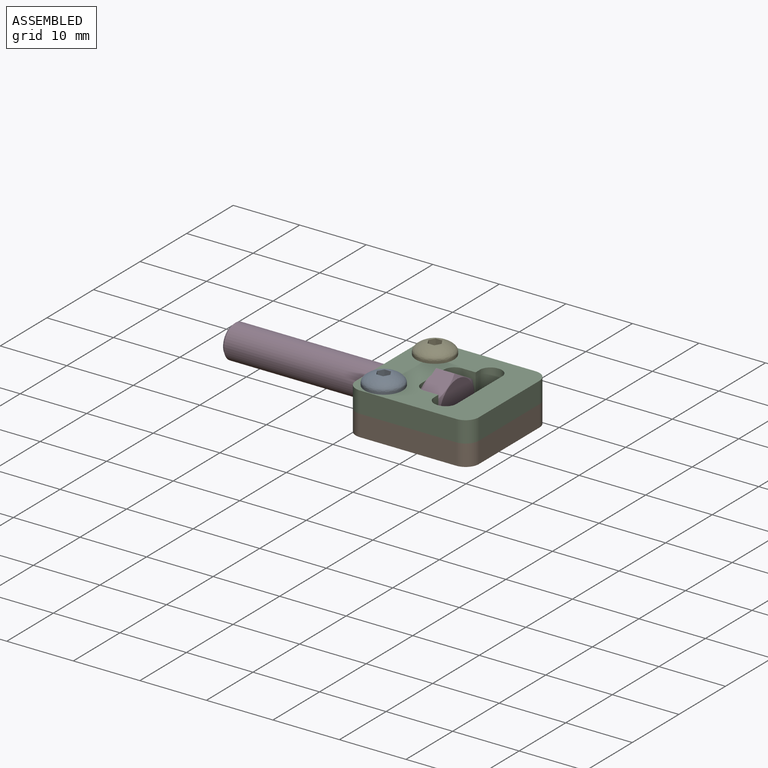
[diagram: assembled view]
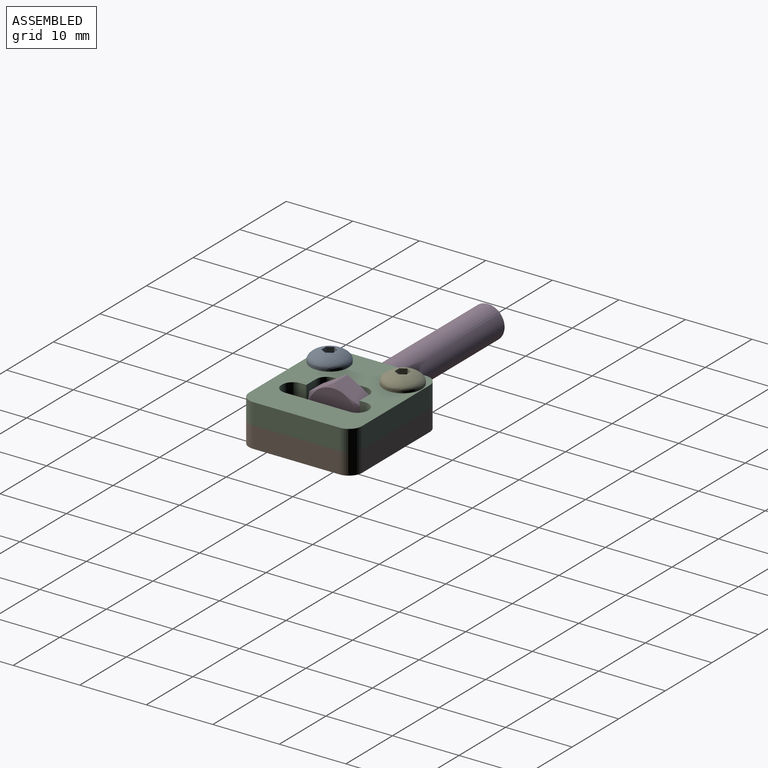
[diagram: assembled view, second angle]
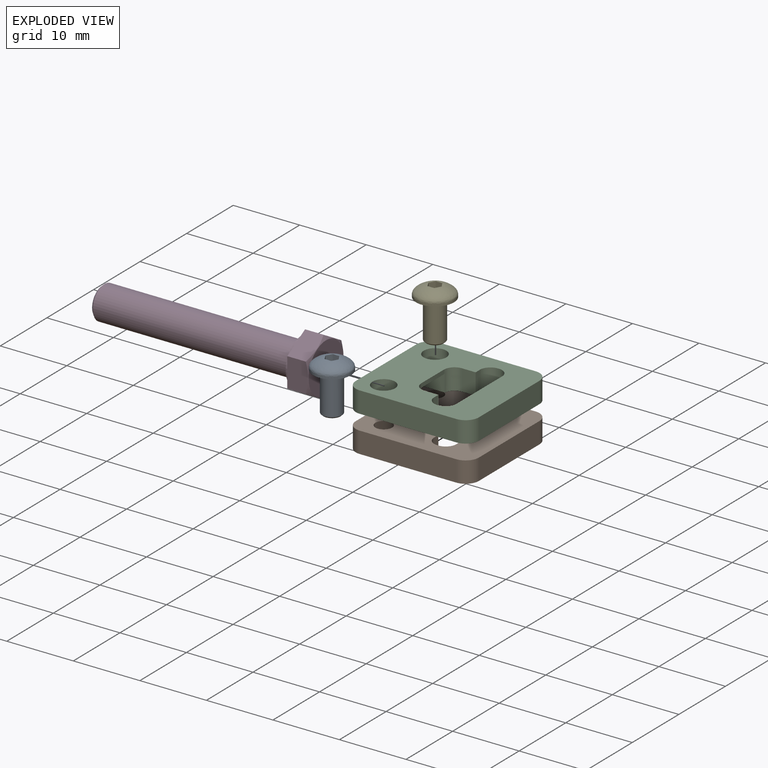
[diagram: exploded view]
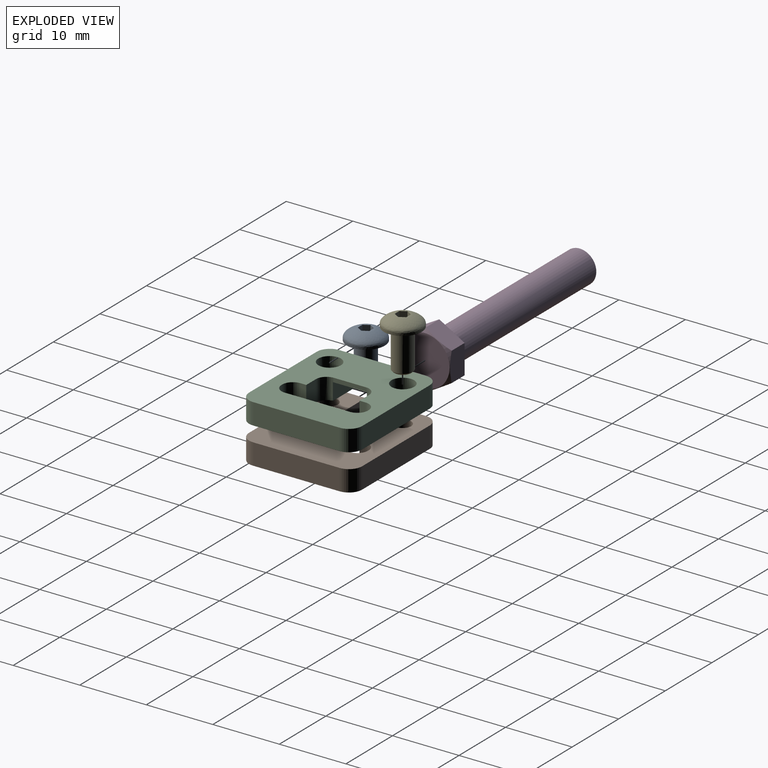
[diagram: exploded view, second angle]
ASSEMBLY  parts=5 mates=3
PART A: 24 faces, bbox 5.7x7.7x5.7 mm
  f0: plane 1x0.14mm, normal (0,-1,0), area 0.1mm2, adj f6,f13
  f1: plane 0.87x0.5mm, normal (0,-1,0), area 0.1mm2, adj f6,f18
  f2: plane 0.87x0.5mm, normal (0,-1,0), area 0.1mm2, adj f6,f17
  f3: plane 1x0.14mm, normal (0,-1,0), area 0.1mm2, adj f6,f16
  f4: plane 0.87x0.5mm, normal (0,-1,0), area 0.1mm2, adj f6,f15
  f5: plane 0.87x0.5mm, normal (0,-1,0), area 0.1mm2, adj f6,f14
  f6: bspline ~5.7x5.7mm, area 30.4mm2, adj f0,f1,f2,f3,f4,f5,f19
  f7: plane 1x0.87mm, normal (-0.1,-0.99,0.06), area 0.4mm2, adj f8,f12,f15
  f8: plane 1x0.87mm, normal (0,-0.99,0.12), area 0.4mm2, adj f7,f9,f16
  f9: plane 1x0.87mm, normal (0.1,-0.99,0.06), area 0.4mm2, adj f8,f10,f17
  f10: plane 1x0.87mm, normal (0.1,-0.99,-0.06), area 0.4mm2, adj f9,f11,f18
  f11: plane 1x0.87mm, normal (0,-0.99,-0.12), area 0.4mm2, adj f10,f12,f13
  f12: plane 1x0.87mm, normal (-0.1,-0.99,-0.06), area 0.4mm2, adj f7,f11,f14
  f13: plane 1.04x1mm, normal (0,0,-1), area 1mm2, adj f0,f11,f14,f18
  f14: plane 1.04x0.87mm, normal (-0.87,0,-0.5), area 1mm2, adj f5,f12,f13,f15
  f15: plane 1.04x0.87mm, normal (-0.87,0,0.5), area 1mm2, adj f4,f7,f14,f16
  f16: plane 1.04x1mm, normal (0,0,1), area 1mm2, adj f3,f8,f15,f17
  f17: plane 1.04x0.87mm, normal (0.87,0,0.5), area 1mm2, adj f2,f9,f16,f18
  f18: plane 1.04x0.87mm, normal (0.87,0,-0.5), area 1mm2, adj f1,f10,f13,f17
  f19: cylinder r=2.85mm len=5.7mm, axis (0,1,0), area 6.8mm2, adj f6,f20
  f20: plane 5.7x5.7mm, normal (0,1,0), area 18.5mm2, adj f19,f21
  f21: cylinder r=1.49mm len=5.79mm, axis (0,-1,0), area 54.2mm2, adj f20,f23
  f22: plane 2.56x2.56mm, normal (0,1,0), area 5.2mm2, adj f23
  f23: cone r=1.28mm half-angle=45deg, axis (0,-1,0), area 2.6mm2, adj f21,f22
PART B: 29 faces, bbox 18.5x17x3.2 mm
  f0: plane 3.18x2.06mm, normal (0,1,0), area 6.5mm2, adj f2,f3,f20,f28
  f1: plane 3.18x2.06mm, normal (0,-1,0), area 6.5mm2, adj f2,f3,f19,f21
  f2: plane 18.5x17mm, normal (0,0,-1), area 231.8mm2, adj f0,f1,f4,f5,f6,f7,f8,f9
  f3: plane 18.5x17mm, normal (0,0,1), area 196.1mm2, adj f0,f1,f5,f6,f7,f8,f9,f10
  f4: plane 4.82x0.63mm, normal (1,0,0), area 3mm2, adj f2,f14,f19,f20
  f5: plane 13x3.18mm, normal (-1,0,0), area 28.3mm2, adj f2,f3,f8,f9,f13,f14,f15
  f6: plane 14.5x3.18mm, normal (0,-1,0), area 46mm2, adj f2,f3,f9,f17
  f7: plane 14.5x3.18mm, normal (0,1,0), area 46mm2, adj f2,f3,f8,f18
  f8: cylinder r=2mm len=3.18mm, axis (0,0,-1), area 10mm2, adj f2,f3,f5,f7
  f9: cylinder r=2mm len=3.18mm, axis (0,0,-1), area 10mm2, adj f2,f3,f5,f6
  f10: cylinder r=1.25mm len=3.18mm, axis (0,0,1), area 24.9mm2, adj f2,f3
  f11: cylinder r=1.25mm len=3.18mm, axis (0,0,1), area 24.9mm2, adj f2,f3
  f12: plane 9.8x3.18mm, normal (-1,0,0), area 31.1mm2, adj f2,f3,f24,f25
  f13: plane 7.01x2.55mm, normal (0,-1,0), area 17.9mm2, adj f3,f5,f14,f19
  f14: plane 7.01x5.1mm, normal (0,0,1), area 35.7mm2, adj f4,f5,f13,f15,f19,f20
  f15: plane 7.01x2.55mm, normal (0,1,0), area 17.9mm2, adj f3,f5,f14,f20
  f16: plane 13x3.18mm, normal (1,0,0), area 41.3mm2, adj f2,f3,f17,f18
  f17: cylinder r=2mm len=3.18mm, axis (0,0,-1), area 10mm2, adj f2,f3,f6,f16
  f18: cylinder r=2mm len=3.18mm, axis (0,0,1), area 10mm2, adj f2,f3,f7,f16
  f19: cylinder r=1.59mm len=3.18mm, axis (0,0,1), area 7.6mm2, adj f1,f2,f3,f4,f13,f14
  f20: cylinder r=1.59mm len=3.18mm, axis (0,0,-1), area 7.6mm2, adj f0,f2,f3,f4,f14,f15
  f21: plane 3.18x0.9mm, normal (1,0,0), area 2.9mm2, adj f1,f2,f3,f22
  f22: cylinder r=1.6mm len=3.18mm, axis (0,0,1), area 8mm2, adj f2,f3,f21,f23
  f23: plane 3.18x0.15mm, normal (0,-1,0), area 0.5mm2, adj f2,f3,f22,f24
  f24: cylinder r=1.6mm len=3.18mm, axis (0,0,1), area 8mm2, adj f2,f3,f12,f23
  f25: cylinder r=1.6mm len=3.18mm, axis (0,0,1), area 8mm2, adj f2,f3,f12,f27
  f26: cylinder r=1.6mm len=3.18mm, axis (0,0,1), area 8mm2, adj f2,f3,f27,f28
  f27: plane 3.18x0.15mm, normal (0,1,0), area 0.5mm2, adj f2,f3,f25,f26
  f28: plane 3.18x0.9mm, normal (1,0,0), area 2.9mm2, adj f0,f2,f3,f26
PART C: 29 faces, bbox 18.5x17x3.2 mm
  f0: plane 18.5x17mm, normal (0,0,1), area 223.4mm2, adj f1,f2,f4,f5,f6,f7,f8,f9
  f1: plane 3.18x2.06mm, normal (0,1,0), area 6.5mm2, adj f0,f3,f19,f28
  f2: plane 3.18x2.06mm, normal (0,-1,0), area 6.5mm2, adj f0,f3,f20,f21
  f3: plane 18.5x17mm, normal (0,0,-1), area 187.7mm2, adj f1,f2,f5,f6,f7,f8,f9,f10
  f4: plane 4.82x0.63mm, normal (1,0,0), area 3mm2, adj f0,f15,f19,f20
  f5: cylinder r=2mm len=3.18mm, axis (0,0,-1), area 10mm2, adj f0,f3,f6,f9
  f6: plane 14.5x3.18mm, normal (0,1,0), area 46mm2, adj f0,f3,f5,f17
  f7: cylinder r=2mm len=3.18mm, axis (0,0,-1), area 10mm2, adj f0,f3,f8,f9
  f8: plane 14.5x3.18mm, normal (0,-1,0), area 46mm2, adj f0,f3,f7,f18
  f9: plane 13x3.18mm, normal (-1,0,0), area 28.3mm2, adj f0,f3,f5,f7,f13,f14,f15
  f10: cylinder r=1.7mm len=3.4mm, axis (0,0,1), area 33.9mm2, adj f0,f3
  f11: cylinder r=1.7mm len=3.4mm, axis (0,0,1), area 33.9mm2, adj f0,f3
  f12: plane 9.8x3.18mm, normal (-1,0,0), area 31.1mm2, adj f0,f3,f24,f25
  f13: plane 7.01x2.55mm, normal (0,-1,0), area 17.9mm2, adj f3,f9,f15,f20
  f14: plane 7.01x2.55mm, normal (0,1,0), area 17.9mm2, adj f3,f9,f15,f19
  f15: plane 7.01x5.1mm, normal (0,0,-1), area 35.7mm2, adj f4,f9,f13,f14,f19,f20
  f16: plane 13x3.18mm, normal (1,0,0), area 41.3mm2, adj f0,f3,f17,f18
  f17: cylinder r=2mm len=3.18mm, axis (0,0,1), area 10mm2, adj f0,f3,f6,f16
  f18: cylinder r=2mm len=3.18mm, axis (0,0,-1), area 10mm2, adj f0,f3,f8,f16
  f19: cylinder r=1.59mm len=3.18mm, axis (0,0,-1), area 7.6mm2, adj f0,f1,f3,f4,f14,f15
  f20: cylinder r=1.59mm len=3.18mm, axis (0,0,1), area 7.6mm2, adj f0,f2,f3,f4,f13,f15
  f21: plane 3.18x0.9mm, normal (1,0,0), area 2.9mm2, adj f0,f2,f3,f22
  f22: cylinder r=1.6mm len=3.18mm, axis (0,0,1), area 8mm2, adj f0,f3,f21,f23
  f23: plane 3.18x0.15mm, normal (0,-1,0), area 0.5mm2, adj f0,f3,f22,f24
  f24: cylinder r=1.6mm len=3.18mm, axis (0,0,1), area 8mm2, adj f0,f3,f12,f23
  f25: cylinder r=1.6mm len=3.18mm, axis (0,0,1), area 8mm2, adj f0,f3,f12,f27
  f26: cylinder r=1.6mm len=3.18mm, axis (0,0,1), area 8mm2, adj f0,f3,f27,f28
  f27: plane 3.18x0.15mm, normal (0,1,0), area 0.5mm2, adj f0,f3,f25,f26
  f28: plane 3.18x0.9mm, normal (1,0,0), area 2.9mm2, adj f0,f1,f3,f26
PART D: 14 faces, bbox 8.8x33.7x8.8 mm
  f0: plane 4.4x3.12mm, normal (0,0,1), area 13.2mm2, adj f1,f5,f6,f9
  f1: plane 3.81x3.12mm, normal (0.87,0,0.5), area 13.2mm2, adj f0,f2,f6,f9
  f2: plane 3.81x3.12mm, normal (0.87,0,-0.5), area 13.2mm2, adj f1,f3,f6,f9
  f3: plane 4.4x3.12mm, normal (0,0,-1), area 13.2mm2, adj f2,f4,f6,f9
  f4: plane 3.81x3.12mm, normal (-0.87,0,-0.5), area 13.2mm2, adj f3,f5,f6,f9
  f5: plane 3.81x3.12mm, normal (-0.87,0,0.5), area 13.2mm2, adj f0,f4,f6,f9
  f6: plane 8.79x7.61mm, normal (0,1,0), area 13mm2, adj f0,f1,f2,f3,f4,f5,f7
  f7: cylinder r=3.44mm len=6.88mm, axis (0,1,0), area 10.8mm2, adj f6,f8
  f8: plane 6.88x6.88mm, normal (0,1,0), area 17.7mm2, adj f7,f11
  f9: cone r=3.75mm half-angle=60deg, axis (0,1,0), area 7mm2, adj f0,f1,f2,f3,f4,f5,f10
  f10: plane 7.49x7.49mm, normal (0,-1,0), area 44.1mm2, adj f9
  f11: cylinder r=2.49mm len=29.65mm, axis (0,-1,0), area 463.5mm2, adj f8,f13
  f12: plane 4.28x4.28mm, normal (0,1,0), area 14.4mm2, adj f13
  f13: cone r=2.14mm half-angle=45deg, axis (0,-1,0), area 7.2mm2, adj f11,f12
PART E: same geometry as A
PLACE A rot(axis=(-1,0,0),90deg) t=(-11.5,-5.5,6.41)mm
PLACE B at identity fixed
PLACE C at identity
PLACE D rot(axis=(-0.58,0.58,0.58),120deg) t=(-4.35,0,1.64)mm
PLACE E rot(axis=(-1,0,0),90deg) t=(-11.5,5.5,6.41)mm
MATE fastened C.f10 <-> E.f19  axis (0,0,1) through (-11.5,5.5,4.76)mm
MATE fastened C.f11 <-> B.f11  axis (0,0,1) through (-11.5,-5.5,1.59)mm
MATE fastened D.f7 <-> C.f4  axis (1,0,0) through (-8,0,1.64)mm
